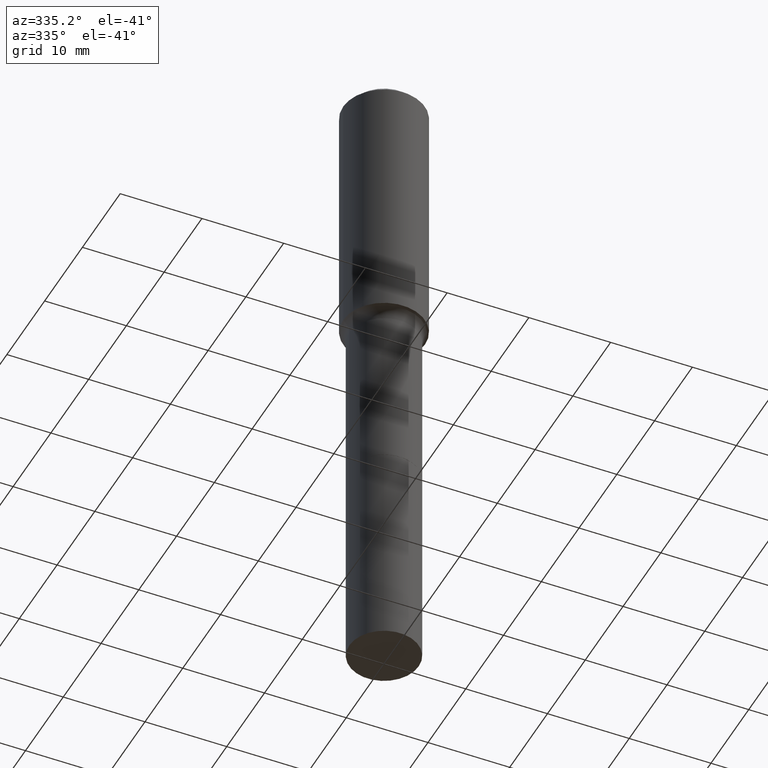
[diagram: clean part render]
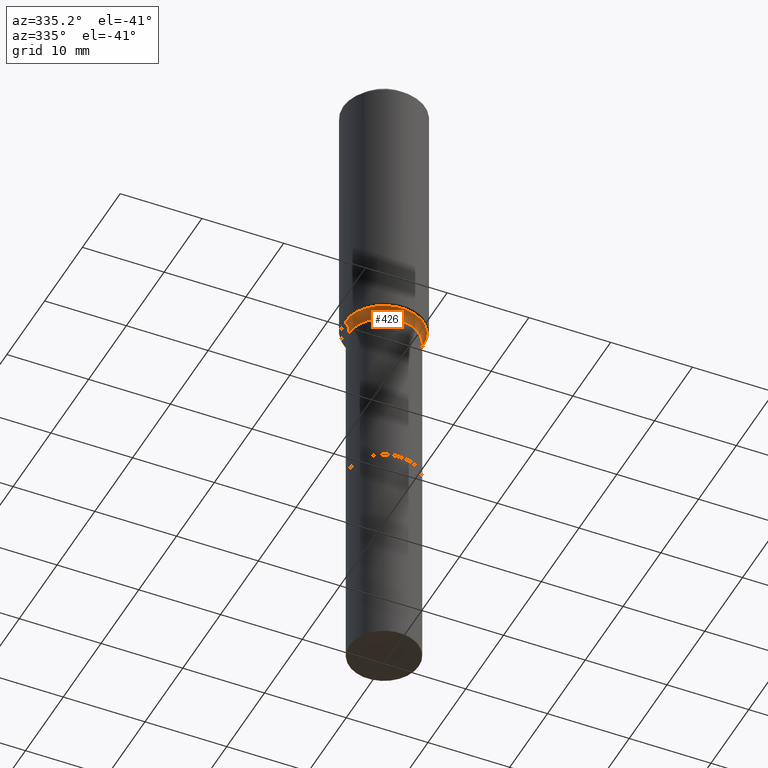
[diagram: same view with one face highlighted and labeled with its STEP entity id]
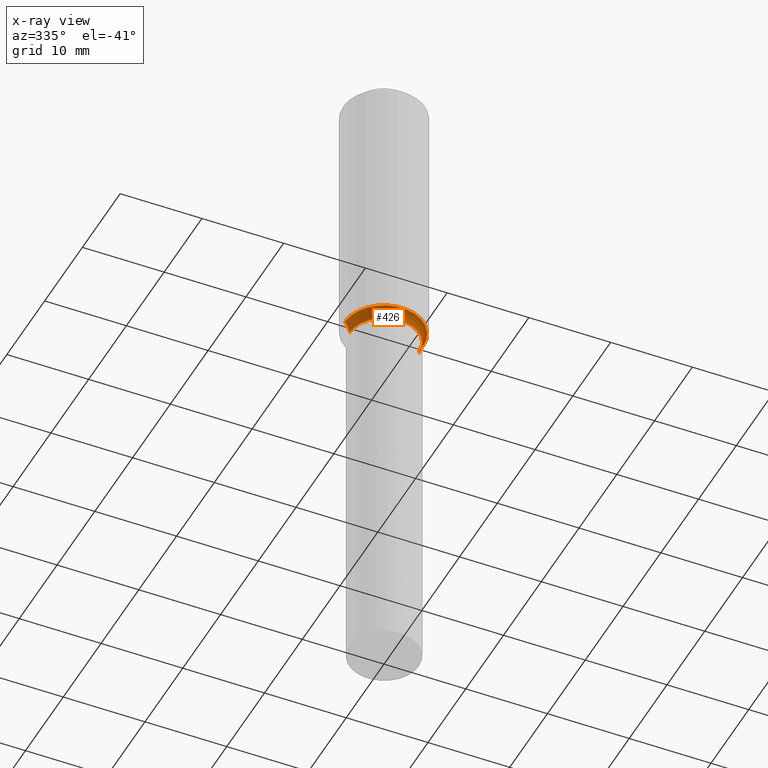
[diagram: x-ray of the same camera — body ghosted, the highlighted face saturated]
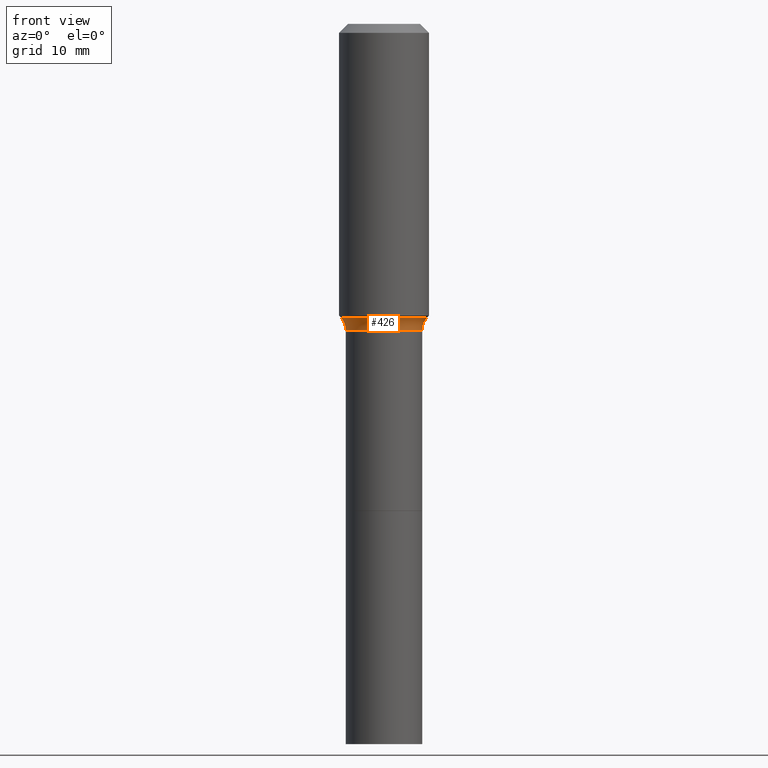
[diagram: same view with one face highlighted and labeled with its STEP entity id]
A machine part, auxiliary view. The second image highlights one B-rep face of the part: STEP entity #426.
The next image is the same camera in x-ray: the body ghosted, the highlighted face saturated — about 0% of this face is hidden behind the body in this view.
A second angle (front view) of the same face is appended — the face is thin or edge-on in the first view.
In plain terms, the highlighted toroidal blend (fillet) surface has major radius 6.2814 mm and minor (blend) radius 2.032 mm.
Its self-contained STEP definition (entity closure, byte-faithful):
#24 = VERTEX_POINT ( 'NONE', #268 ) ;
#31 = DIRECTION ( 'NONE',  ( 1.000000000000000000, -6.982962677686267499E-15, 0.000000000000000000 ) ) ;
#34 = CARTESIAN_POINT ( 'NONE',  ( 0.2472999999999999088, -6.400583590367248387E-15, -1.338600000000000234 ) ) ;
#35 = FACE_OUTER_BOUND ( 'NONE', #214, .T. ) ;
#36 = DIRECTION ( 'NONE',  ( 1.000000000000000000, -6.982962677686268288E-15, 0.000000000000000000 ) ) ;
#66 = AXIS2_PLACEMENT_3D ( 'NONE', #386, #111, #31 ) ;
#74 = CIRCLE ( 'NONE', #185, 0.1887917038704666206 ) ;
#111 = DIRECTION ( 'NONE',  ( -2.445468806185136597E-29, 3.491481338843145583E-15, 1.000000000000000000 ) ) ;
#112 = DIRECTION ( 'NONE',  ( -2.445468806185136597E-29, 3.491481338843145583E-15, 1.000000000000000000 ) ) ;
#135 = VERTEX_POINT ( 'NONE', #319 ) ;
#145 = EDGE_CURVE ( 'NONE', #327, #195, #430, .T. ) ;
#152 = EDGE_CURVE ( 'NONE', #24, #327, #74, .T. ) ;
#161 = CIRCLE ( 'NONE', #201, 0.07999999999999990452 ) ;
#176 = DIRECTION ( 'NONE',  ( 7.105427357601001859E-15, 1.000000000000000000, -3.491481338843145583E-15 ) ) ;
#185 = AXIS2_PLACEMENT_3D ( 'NONE', #469, #112, #274 ) ;
#195 = VERTEX_POINT ( 'NONE', #333 ) ;
#201 = AXIS2_PLACEMENT_3D ( 'NONE', #306, #176, #304 ) ;
#214 = EDGE_LOOP ( 'NONE', ( #270, #483, #218, #415 ) ) ;
#216 = AXIS2_PLACEMENT_3D ( 'NONE', #34, #473, #36 ) ;
#218 = ORIENTED_EDGE ( 'NONE', *, *, #358, .T. ) ;
#221 = EDGE_CURVE ( 'NONE', #24, #135, #161, .T. ) ;
#228 = AXIS2_PLACEMENT_3D ( 'NONE', #313, #428, #316 ) ;
#268 = CARTESIAN_POINT ( 'NONE',  ( -0.1887917038704664818, -3.141756418823729356E-15, -1.284040131195000489 ) ) ;
#270 = ORIENTED_EDGE ( 'NONE', *, *, #152, .F. ) ;
#274 = DIRECTION ( 'NONE',  ( 1.000000000000000000, -6.982962677686269077E-15, 0.000000000000000000 ) ) ;
#304 = DIRECTION ( 'NONE',  ( -1.000000000000000000, 7.105427357601001859E-15, 0.000000000000000000 ) ) ;
#306 = CARTESIAN_POINT ( 'NONE',  ( -0.2472999999999999088, -2.916524734640708414E-15, -1.338600000000000234 ) ) ;
#313 = CARTESIAN_POINT ( 'NONE',  ( 3.273504543959424474E-29, -4.673696920175435525E-15, -1.338600000000000234 ) ) ;
#316 = DIRECTION ( 'NONE',  ( 1.000000000000000000, -6.982962677686265922E-15, 4.883557194083112340E-29 ) ) ;
#319 = CARTESIAN_POINT ( 'NONE',  ( -0.1672999999999999210, -4.864966922426541281E-15, -1.338600000000000234 ) ) ;
#327 = VERTEX_POINT ( 'NONE', #462 ) ;
#333 = CARTESIAN_POINT ( 'NONE',  ( 0.1672999999999999210, -5.841946576152347523E-15, -1.338600000000000234 ) ) ;
#358 = EDGE_CURVE ( 'NONE', #135, #195, #389, .T. ) ;
#386 = CARTESIAN_POINT ( 'NONE',  ( 3.273504543959424474E-29, -4.673696920175435525E-15, -1.338600000000000234 ) ) ;
#389 = CIRCLE ( 'NONE', #66, 0.1672999999999999210 ) ;
#415 = ORIENTED_EDGE ( 'NONE', *, *, #145, .F. ) ;
#423 = TOROIDAL_SURFACE ( 'NONE', #228, 0.2472999999999999088, 0.07999999999999993228 ) ;
#426 = ADVANCED_FACE ( 'NONE', ( #35 ), #423, .F. ) ;
#428 = DIRECTION ( 'NONE',  ( -2.445468806185136597E-29, 3.491481338843145583E-15, 1.000000000000000000 ) ) ;
#430 = CIRCLE ( 'NONE', #216, 0.07999999999999990452 ) ;
#462 = CARTESIAN_POINT ( 'NONE',  ( 0.1887917038704664818, -5.801527578377313775E-15, -1.284040131195000489 ) ) ;
#469 = CARTESIAN_POINT ( 'NONE',  ( 3.140080086727243582E-29, -4.483202156393049043E-15, -1.284040131195000489 ) ) ;
#473 = DIRECTION ( 'NONE',  ( -6.982962677686266711E-15, -1.000000000000000000, 3.491481338843145583E-15 ) ) ;
#483 = ORIENTED_EDGE ( 'NONE', *, *, #221, .T. ) ;